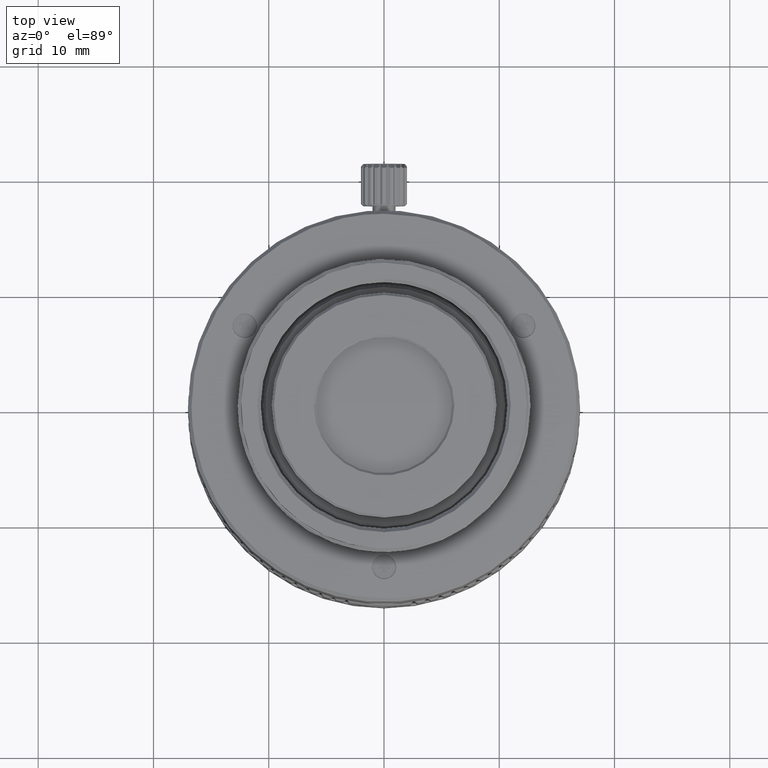
[diagram: clean part render]
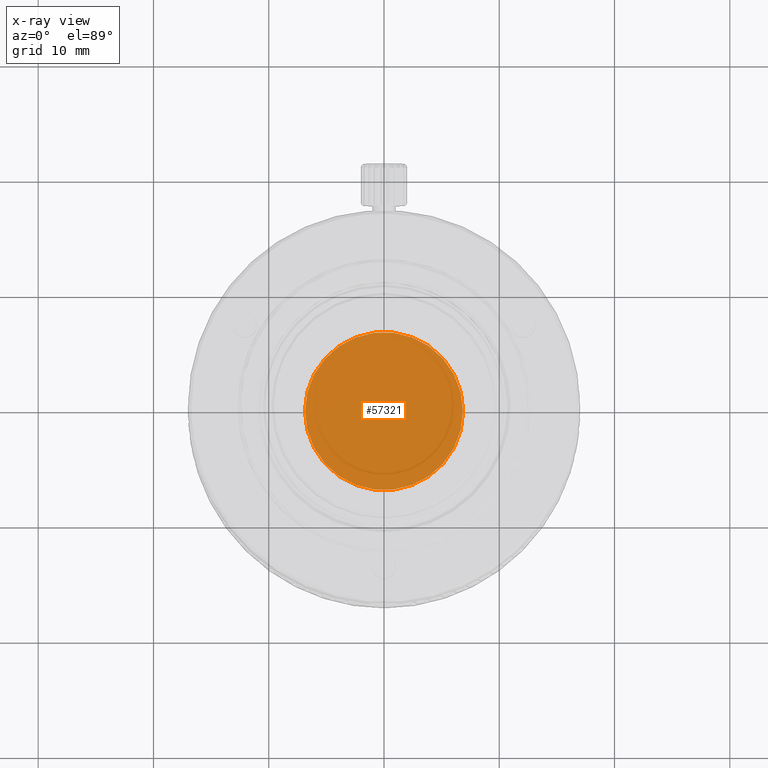
[diagram: x-ray — body ghosted, one internal face saturated and labeled with its STEP entity id]
A machine part, top view, then the same camera in x-ray: the body is ghosted and one INTERNAL B-rep face — a face not visible from any outside direction — is saturated and labeled: STEP entity #57321.
In plain terms, the highlighted planar face has unit normal (0, 0, 1).
Its self-contained STEP definition (entity closure, byte-faithful):
#1702 = AXIS2_PLACEMENT_3D ( 'NONE', #16200, #33472, #6545 ) ;
#2083 = ORIENTED_EDGE ( 'NONE', *, *, #11599, .T. ) ;
#3318 = DIRECTION ( 'NONE',  ( 0.000000000000000000, 0.000000000000000000, 1.000000000000000000 ) ) ;
#6545 = DIRECTION ( 'NONE',  ( 0.000000000000000000, -1.000000000000000000, -7.595351049021461494E-16 ) ) ;
#8001 = FACE_OUTER_BOUND ( 'NONE', #44469, .T. ) ;
#10801 = VERTEX_POINT ( 'NONE', #11932 ) ;
#11599 = EDGE_CURVE ( 'NONE', #10801, #23414, #53016, .T. ) ;
#11932 = CARTESIAN_POINT ( 'NONE',  ( 6.851783932489676765, 5.928054760368460213E-14, -7.020394469254998882 ) ) ;
#13862 = CIRCLE ( 'NONE', #1702, 6.851783932489722950 ) ;
#16200 = CARTESIAN_POINT ( 'NONE',  ( -5.111655778037417141E-14, 5.928054760368469048E-14, -7.020394469254998882 ) ) ;
#16347 = DIRECTION ( 'NONE',  ( 0.000000000000000000, -1.000000000000000000, -7.595351049021461494E-16 ) ) ;
#19103 = CARTESIAN_POINT ( 'NONE',  ( -6.851783932489776241, 6.011964912982187399E-14, -7.020394469254995329 ) ) ;
#21006 = CARTESIAN_POINT ( 'NONE',  ( -5.111655778037417141E-14, 5.928054760368469048E-14, -7.020394469254998882 ) ) ;
#23414 = VERTEX_POINT ( 'NONE', #19103 ) ;
#33472 = DIRECTION ( 'NONE',  ( -3.643932706640100529E-16, 7.287865413280273041E-16, -1.000000000000000000 ) ) ;
#33788 = DIRECTION ( 'NONE',  ( 1.000000000000000000, 0.000000000000000000, -0.000000000000000000 ) ) ;
#34013 = AXIS2_PLACEMENT_3D ( 'NONE', #43717, #3318, #33788 ) ;
#34660 = PLANE ( 'NONE',  #34013 ) ;
#36202 = ORIENTED_EDGE ( 'NONE', *, *, #47703, .T. ) ;
#38604 = DIRECTION ( 'NONE',  ( -3.643932706640100529E-16, 7.287865413280273041E-16, -1.000000000000000000 ) ) ;
#43717 = CARTESIAN_POINT ( 'NONE',  ( -5.111655778037417141E-14, 5.928054760368469048E-14, -7.020394469254998882 ) ) ;
#44469 = EDGE_LOOP ( 'NONE', ( #2083, #36202 ) ) ;
#47703 = EDGE_CURVE ( 'NONE', #23414, #10801, #13862, .T. ) ;
#50156 = AXIS2_PLACEMENT_3D ( 'NONE', #21006, #38604, #16347 ) ;
#53016 = CIRCLE ( 'NONE', #50156, 6.851783932489722950 ) ;
#57321 = ADVANCED_FACE ( 'NONE', ( #8001 ), #34660, .F. ) ;